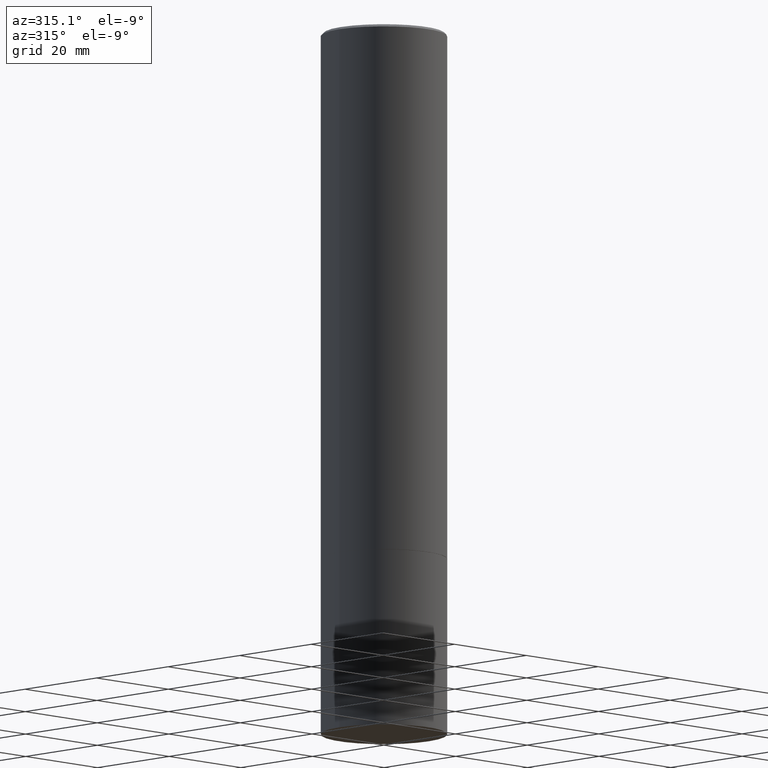
[diagram: clean part render]
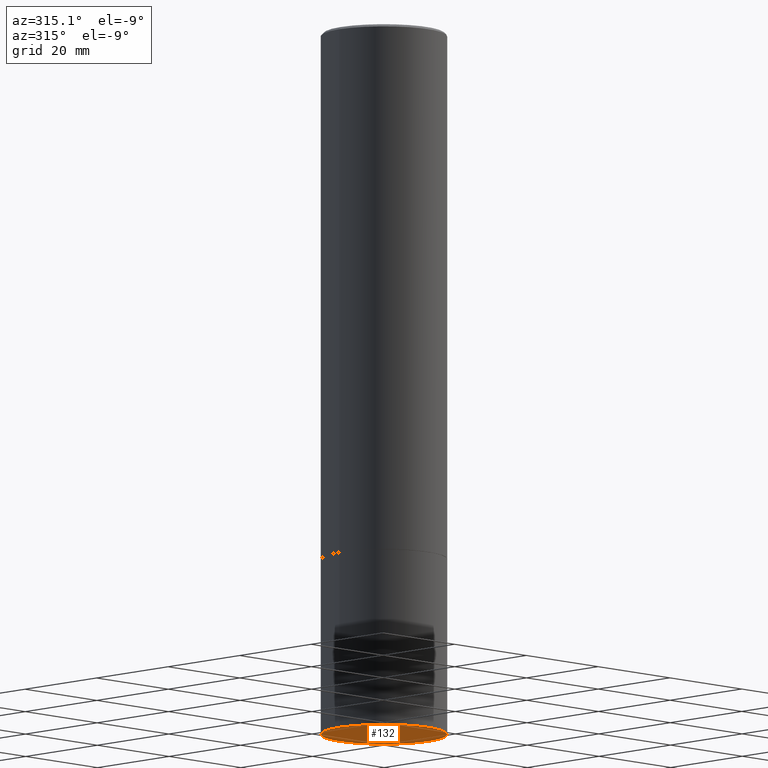
[diagram: same view with one face highlighted and labeled with its STEP entity id]
A machine part, auxiliary view. The second image highlights one B-rep face of the part: STEP entity #132.
In plain terms, the highlighted planar face has unit normal (0, -0, -1).
Its self-contained STEP definition (entity closure, byte-faithful):
#13 = VERTEX_POINT ( 'NONE', #352 ) ;
#24 = DIRECTION ( 'NONE',  ( -2.445468806185136597E-29, 3.491481338843145583E-15, 1.000000000000000000 ) ) ;
#50 = CIRCLE ( 'NONE', #363, 0.4921499999999999764 ) ;
#63 = CARTESIAN_POINT ( 'NONE',  ( 1.347893496593123646E-28, -1.924434684343564878E-14, -5.511800000000000033 ) ) ;
#68 = EDGE_CURVE ( 'NONE', #219, #13, #101, .T. ) ;
#90 = CARTESIAN_POINT ( 'NONE',  ( 3.436665081823430672E-15, 0.4921499999999807140, -5.511800000000001809 ) ) ;
#101 = CIRCLE ( 'NONE', #128, 0.4921499999999999764 ) ;
#114 = ORIENTED_EDGE ( 'NONE', *, *, #68, .F. ) ;
#121 = CARTESIAN_POINT ( 'NONE',  ( 1.347893496593123646E-28, -1.924434684343564878E-14, -5.511800000000000033 ) ) ;
#128 = AXIS2_PLACEMENT_3D ( 'NONE', #63, #24, #143 ) ;
#132 = ADVANCED_FACE ( 'NONE', ( #227 ), #338, .T. ) ;
#143 = DIRECTION ( 'NONE',  ( 1.000000000000000000, -6.982962677686265922E-15, 0.000000000000000000 ) ) ;
#154 = DIRECTION ( 'NONE',  ( -2.445468806185136597E-29, 3.491481338843145583E-15, 1.000000000000000000 ) ) ;
#161 = DIRECTION ( 'NONE',  ( 1.000000000000000000, -6.982962677686265922E-15, 0.000000000000000000 ) ) ;
#197 = DIRECTION ( 'NONE',  ( 2.438088387897960049E-29, -3.491481338843145188E-15, -1.000000000000000000 ) ) ;
#211 = DIRECTION ( 'NONE',  ( -1.000000000000000000, 6.982962677686265922E-15, -4.876176775795935793E-29 ) ) ;
#219 = VERTEX_POINT ( 'NONE', #272 ) ;
#227 = FACE_OUTER_BOUND ( 'NONE', #270, .T. ) ;
#235 = ORIENTED_EDGE ( 'NONE', *, *, #297, .F. ) ;
#240 = AXIS2_PLACEMENT_3D ( 'NONE', #90, #197, #211 ) ;
#270 = EDGE_LOOP ( 'NONE', ( #114, #235 ) ) ;
#272 = CARTESIAN_POINT ( 'NONE',  ( 0.4921499999999999764, -2.268101192525894613E-14, -5.511800000000000033 ) ) ;
#297 = EDGE_CURVE ( 'NONE', #13, #219, #50, .T. ) ;
#338 = PLANE ( 'NONE',  #240 ) ;
#352 = CARTESIAN_POINT ( 'NONE',  ( -0.4921499999999999764, -1.334178012692939009E-14, -5.511800000000000033 ) ) ;
#363 = AXIS2_PLACEMENT_3D ( 'NONE', #121, #154, #161 ) ;